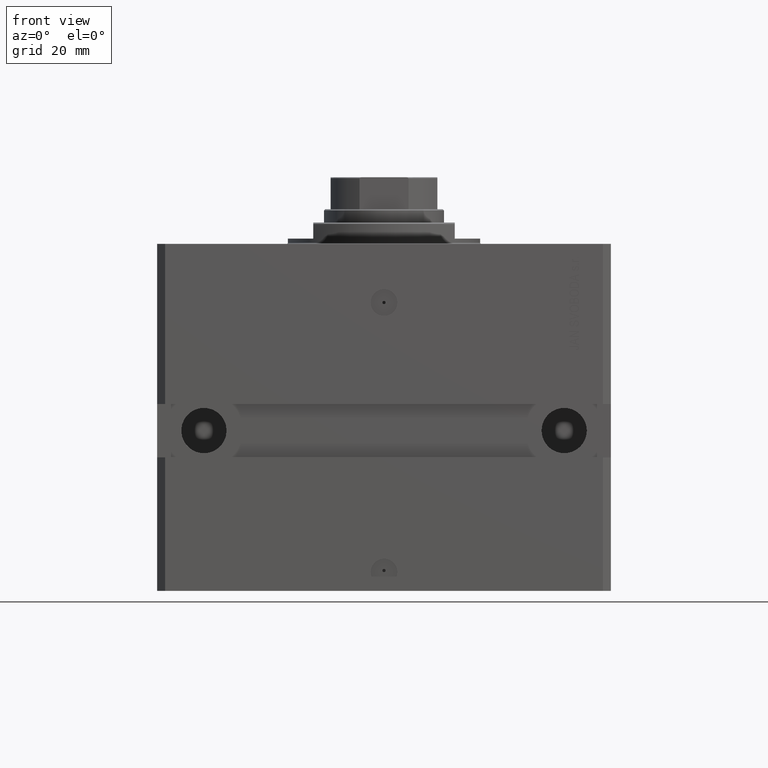
[diagram: clean part render]
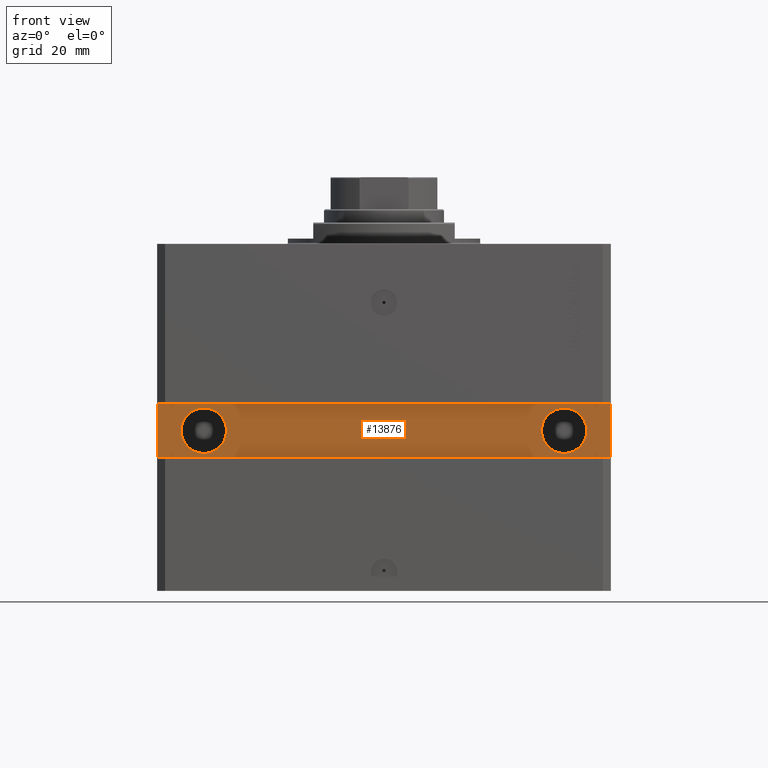
[diagram: same view with one face highlighted and labeled with its STEP entity id]
A machine part, front view. The second image highlights one B-rep face of the part: STEP entity #13876.
In plain terms, the highlighted planar face has unit normal (0, -1, 0).
Its self-contained STEP definition (entity closure, byte-faithful):
#280 = EDGE_CURVE ( 'NONE', #47215, #5824, #27491, .T. ) ;
#941 = DIRECTION ( 'NONE',  ( 1.101411730780568590E-16, -1.000000000000000000, 0.000000000000000000 ) ) ;
#1175 = CARTESIAN_POINT ( 'NONE',  ( -67.49999999999997158, -65.00000000000001421, -70.00000000000001421 ) ) ;
#1179 = EDGE_CURVE ( 'NONE', #42187, #45589, #10234, .T. ) ;
#1610 = AXIS2_PLACEMENT_3D ( 'NONE', #1175, #941, #45513 ) ;
#3055 = EDGE_CURVE ( 'NONE', #14137, #10579, #46938, .T. ) ;
#4101 = DIRECTION ( 'NONE',  ( 0.000000000000000000, 0.000000000000000000, 1.000000000000000000 ) ) ;
#4325 = ORIENTED_EDGE ( 'NONE', *, *, #12950, .F. ) ;
#4751 = VECTOR ( 'NONE', #42678, 1000.000000000000000 ) ;
#4790 = LINE ( 'NONE', #12845, #36490 ) ;
#5410 = CARTESIAN_POINT ( 'NONE',  ( 1.084072457370145048E-14, -65.00000000000000000, 0.000000000000000000 ) ) ;
#5824 = VERTEX_POINT ( 'NONE', #47216 ) ;
#6469 = ORIENTED_EDGE ( 'NONE', *, *, #21136, .T. ) ;
#6993 = DIRECTION ( 'NONE',  ( 1.000000000000000000, 0.000000000000000000, 0.000000000000000000 ) ) ;
#9283 = CARTESIAN_POINT ( 'NONE',  ( -85.00000000000001421, -65.00000000000001421, -80.00000000000001421 ) ) ;
#9324 = FACE_BOUND ( 'NONE', #24703, .T. ) ;
#9918 = VERTEX_POINT ( 'NONE', #43935 ) ;
#9938 = DIRECTION ( 'NONE',  ( 1.000000000000000000, 0.000000000000000000, 0.000000000000000000 ) ) ;
#10234 = CIRCLE ( 'NONE', #30552, 8.499999999999992895 ) ;
#10579 = VERTEX_POINT ( 'NONE', #27883 ) ;
#11294 = DIRECTION ( 'NONE',  ( 1.000000000000000000, 0.000000000000000000, 0.000000000000000000 ) ) ;
#12845 = CARTESIAN_POINT ( 'NONE',  ( -85.00000000000001421, -65.00000000000001421, -60.00000000000002842 ) ) ;
#12950 = EDGE_CURVE ( 'NONE', #45589, #42187, #28589, .T. ) ;
#13382 = CARTESIAN_POINT ( 'NONE',  ( 67.50000000000002842, -64.99999999999998579, -70.00000000000000000 ) ) ;
#13876 = ADVANCED_FACE ( 'NONE', ( #9324, #31821, #20814 ), #24258, .T. ) ;
#14137 = VERTEX_POINT ( 'NONE', #44569 ) ;
#15113 = CARTESIAN_POINT ( 'NONE',  ( 85.00000000000001421, -64.99999999999998579, -80.00000000000001421 ) ) ;
#16435 = VECTOR ( 'NONE', #30159, 1000.000000000000000 ) ;
#16501 = EDGE_LOOP ( 'NONE', ( #24585, #29751 ) ) ;
#16711 = CARTESIAN_POINT ( 'NONE',  ( -85.00000000000001421, -65.00000000000001421, -80.00000000000001421 ) ) ;
#17774 = DIRECTION ( 'NONE',  ( 1.041232428609250764E-16, -1.000000000000000000, -6.162975822039154730E-33 ) ) ;
#18260 = EDGE_CURVE ( 'NONE', #10579, #14137, #27093, .T. ) ;
#18919 = LINE ( 'NONE', #22354, #16435 ) ;
#19080 = EDGE_CURVE ( 'NONE', #9918, #47215, #4790, .T. ) ;
#19200 = CARTESIAN_POINT ( 'NONE',  ( 59.00000000000003553, -64.99999999999998579, -70.00000000000000000 ) ) ;
#20814 = FACE_OUTER_BOUND ( 'NONE', #37652, .T. ) ;
#21136 = EDGE_CURVE ( 'NONE', #5824, #46433, #48207, .T. ) ;
#21202 = CARTESIAN_POINT ( 'NONE',  ( -67.49999999999997158, -65.00000000000001421, -70.00000000000001421 ) ) ;
#22276 = ORIENTED_EDGE ( 'NONE', *, *, #25959, .T. ) ;
#22354 = CARTESIAN_POINT ( 'NONE',  ( 85.00000000000001421, -64.99999999999998579, -59.99999999999998579 ) ) ;
#22595 = ORIENTED_EDGE ( 'NONE', *, *, #280, .T. ) ;
#24258 = PLANE ( 'NONE',  #29321 ) ;
#24554 = ORIENTED_EDGE ( 'NONE', *, *, #1179, .F. ) ;
#24585 = ORIENTED_EDGE ( 'NONE', *, *, #18260, .F. ) ;
#24703 = EDGE_LOOP ( 'NONE', ( #24554, #4325 ) ) ;
#25354 = DIRECTION ( 'NONE',  ( 1.101411730780568590E-16, -1.000000000000000000, 0.000000000000000000 ) ) ;
#25959 = EDGE_CURVE ( 'NONE', #46433, #9918, #18919, .T. ) ;
#27010 = ORIENTED_EDGE ( 'NONE', *, *, #19080, .T. ) ;
#27093 = CIRCLE ( 'NONE', #42001, 8.500000000000000000 ) ;
#27491 = LINE ( 'NONE', #16711, #4751 ) ;
#27883 = CARTESIAN_POINT ( 'NONE',  ( -58.99999999999997868, -65.00000000000001421, -70.00000000000001421 ) ) ;
#28589 = CIRCLE ( 'NONE', #37986, 8.499999999999992895 ) ;
#28721 = VECTOR ( 'NONE', #4101, 1000.000000000000000 ) ;
#29321 = AXIS2_PLACEMENT_3D ( 'NONE', #5410, #46551, #35500 ) ;
#29751 = ORIENTED_EDGE ( 'NONE', *, *, #3055, .F. ) ;
#30159 = DIRECTION ( 'NONE',  ( -1.000000000000000000, -1.632680918566406300E-16, -2.449021377849609204E-16 ) ) ;
#30552 = AXIS2_PLACEMENT_3D ( 'NONE', #13382, #17774, #9938 ) ;
#31821 = FACE_BOUND ( 'NONE', #16501, .T. ) ;
#34635 = DIRECTION ( 'NONE',  ( 0.000000000000000000, 0.000000000000000000, -1.000000000000000000 ) ) ;
#35500 = DIRECTION ( 'NONE',  ( 1.000000000000000000, 1.632680918566406300E-16, 0.000000000000000000 ) ) ;
#36490 = VECTOR ( 'NONE', #34635, 1000.000000000000000 ) ;
#37481 = CARTESIAN_POINT ( 'NONE',  ( 76.00000000000002842, -64.99999999999998579, -70.00000000000000000 ) ) ;
#37652 = EDGE_LOOP ( 'NONE', ( #22595, #6469, #22276, #27010 ) ) ;
#37958 = CARTESIAN_POINT ( 'NONE',  ( 67.50000000000002842, -64.99999999999998579, -70.00000000000000000 ) ) ;
#37986 = AXIS2_PLACEMENT_3D ( 'NONE', #37958, #48300, #11294 ) ;
#42001 = AXIS2_PLACEMENT_3D ( 'NONE', #21202, #25354, #6993 ) ;
#42187 = VERTEX_POINT ( 'NONE', #37481 ) ;
#42678 = DIRECTION ( 'NONE',  ( 1.000000000000000000, 1.632680918566406300E-16, 0.000000000000000000 ) ) ;
#43935 = CARTESIAN_POINT ( 'NONE',  ( -85.00000000000001421, -65.00000000000001421, -60.00000000000002842 ) ) ;
#44569 = CARTESIAN_POINT ( 'NONE',  ( -75.99999999999997158, -65.00000000000001421, -70.00000000000001421 ) ) ;
#45513 = DIRECTION ( 'NONE',  ( 1.000000000000000000, 0.000000000000000000, 0.000000000000000000 ) ) ;
#45589 = VERTEX_POINT ( 'NONE', #19200 ) ;
#46433 = VERTEX_POINT ( 'NONE', #48146 ) ;
#46551 = DIRECTION ( 'NONE',  ( 1.632680918566406300E-16, -1.000000000000000000, 0.000000000000000000 ) ) ;
#46938 = CIRCLE ( 'NONE', #1610, 8.500000000000000000 ) ;
#47215 = VERTEX_POINT ( 'NONE', #9283 ) ;
#47216 = CARTESIAN_POINT ( 'NONE',  ( 85.00000000000001421, -64.99999999999998579, -80.00000000000001421 ) ) ;
#48146 = CARTESIAN_POINT ( 'NONE',  ( 85.00000000000001421, -64.99999999999998579, -59.99999999999998579 ) ) ;
#48207 = LINE ( 'NONE', #15113, #28721 ) ;
#48300 = DIRECTION ( 'NONE',  ( 1.041232428609250764E-16, -1.000000000000000000, -6.162975822039154730E-33 ) ) ;